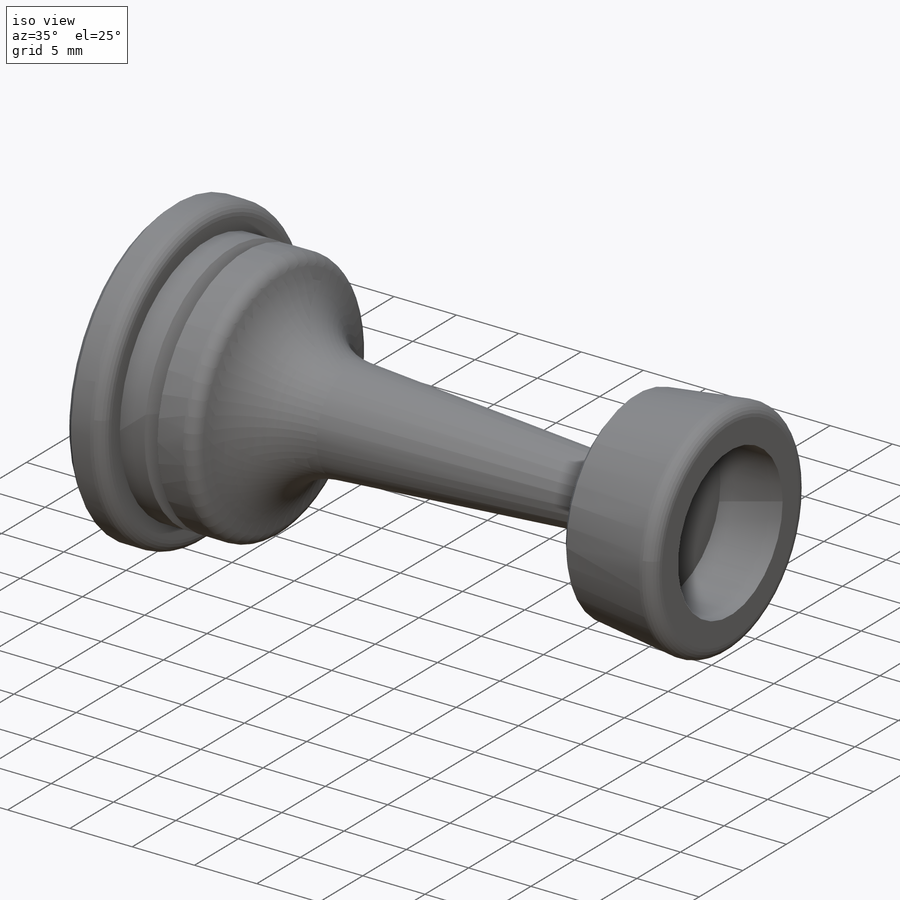
[diagram: iso view]
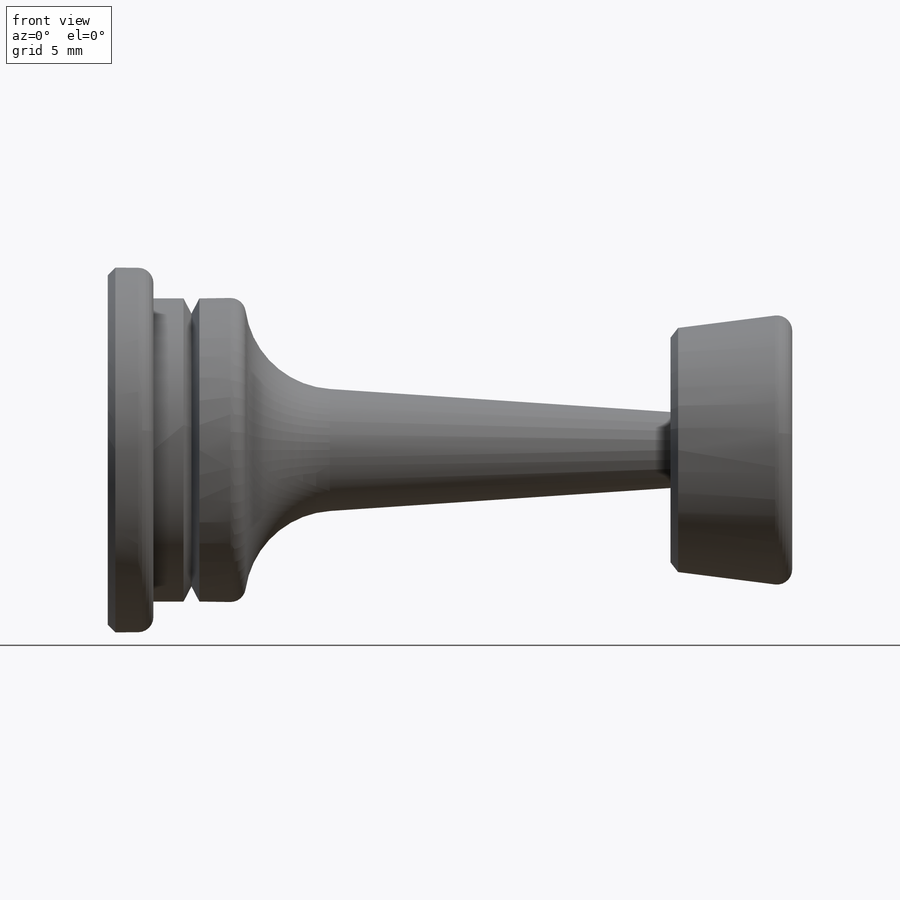
[diagram: front view]
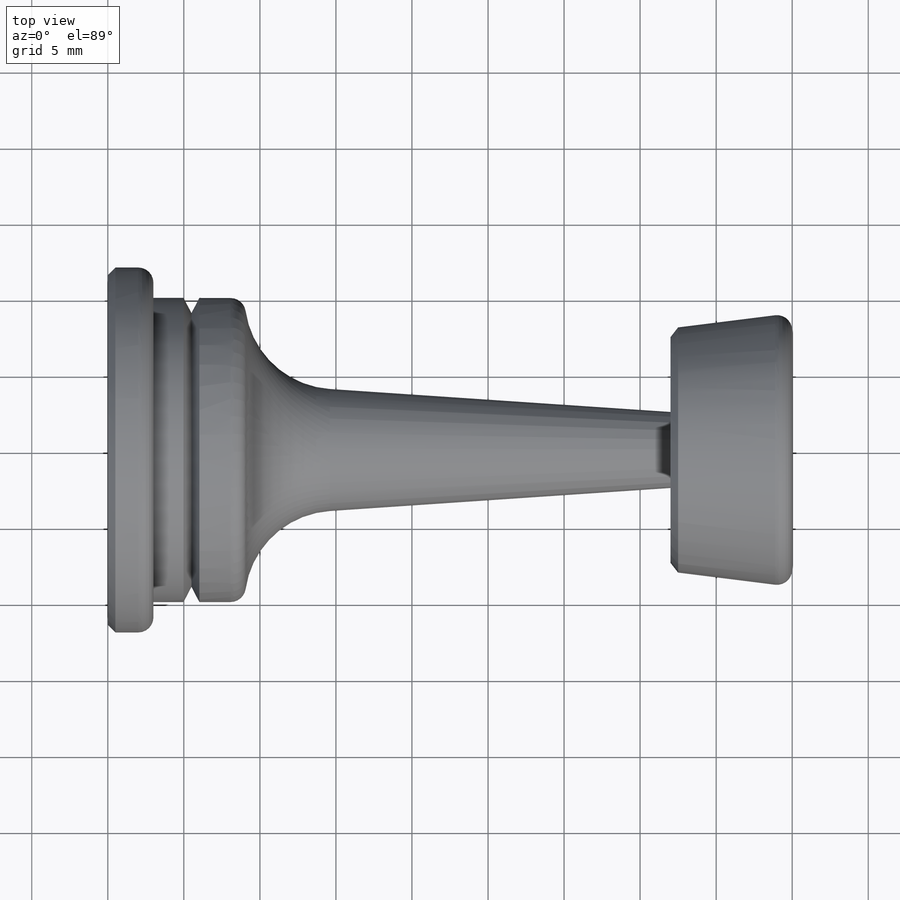
[diagram: top view]
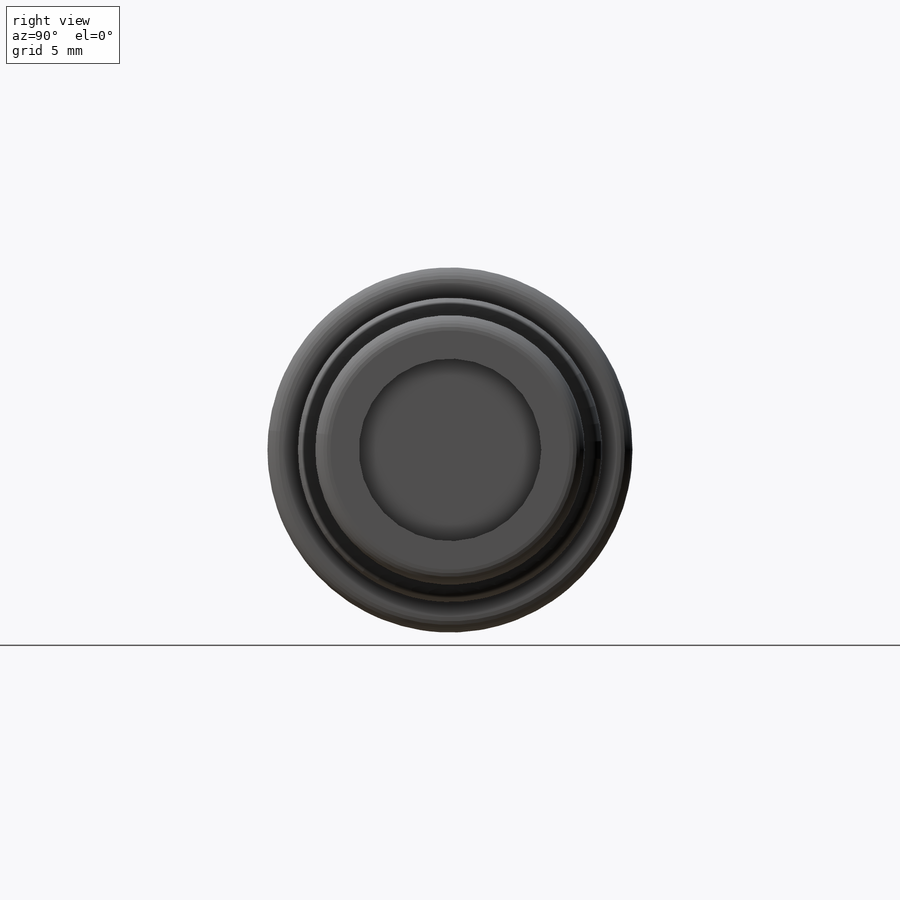
[diagram: right view]
SOLIDWORKS PART (.sldprt)
format: sldprt  version: not decoded by parser v0  size: 305,152 bytes
history: native  units: mm
features: sketch x4, cut_extrude x2, material x1, revolve x1, cut_revolve x1, fillet x1, chamfer x1 (+13 scaffold rows collapsed)
feature tree (24):
  scaffold x13  (default folders/planes/origin — collapsed)
  material  "Material <not specified>"
  sketch  "Sketch1"  dims[c1.D1=6.0mm c1.D8=10.0mm c1.D13=6.0mm c1.D14=1.0mm c2.D1=~105.413137mm c2.D2=24.0mm c2.D3=3.0mm c2.D4=20.0mm c2.D5=6.0mm c2.D6=5.0mm c2.D7=45.0mm c2.D9=~11.057483mm c3.D9=50.0deg c3.D8=~15.598721mm c4.D8=55.0deg c4.D10=~21.50094mm c5.D10=27.5deg c5.D11=15.0mm c5.D12=8.0mm c5.D8=9.0mm c5.D9=8.0mm]
  revolve  "Revolve1"  Angle=360deg
  sketch  "Sketch2"  dims[c1.D1=~2.075625mm c2.D1=55.0deg c2.D2=1.0mm c2.D3=2.5mm]
  cut_revolve  "Cut-Revolve1"  Angle=360deg
  sketch  "Sketch3"  dims[D1=12.0mm]
  cut_extrude  "Cut-Extrude1"  Depth=5mm
  sketch  "Sketch4"  dims[D1=12.0mm]
  cut_extrude  "Cut-Extrude2"  Depth=5mm
  fillet  "Fillet1"  Radius=1mm
  chamfer  "Chamfer1"  Distance=0.5mm Angle=45deg
decode coverage: 10 of 10 modeling features carry decoded parameters
note: ~ marks probable driven/reference dimensions
note: suppression state not decoded; provenance and decode notes live in map.json
